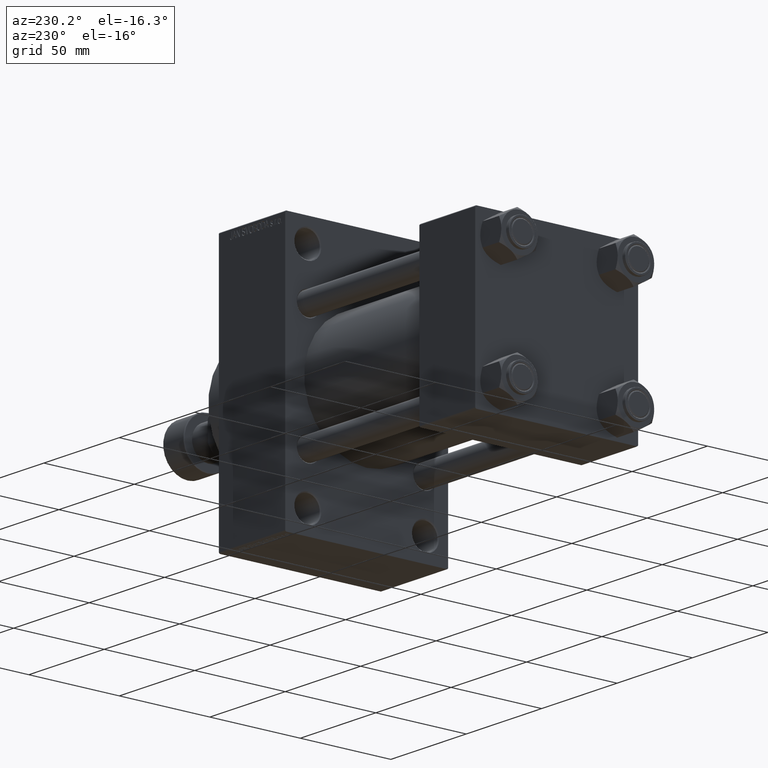
[diagram: clean part render]
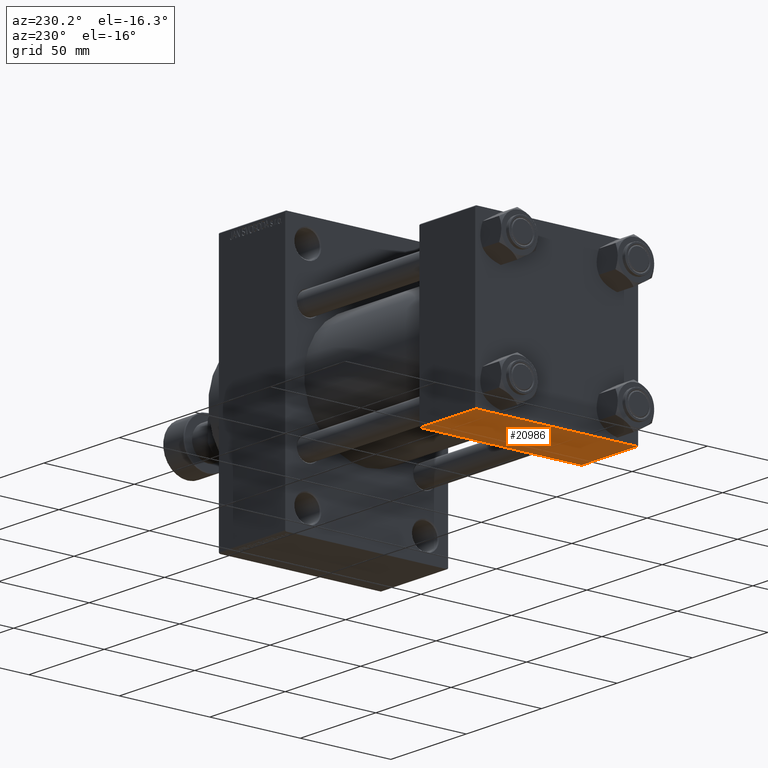
[diagram: same view with one face highlighted and labeled with its STEP entity id]
A machine part, auxiliary view. The second image highlights one B-rep face of the part: STEP entity #20986.
In plain terms, the highlighted planar face has unit normal (0, 0, -1).
Its self-contained STEP definition (entity closure, byte-faithful):
#488 = ORIENTED_EDGE ( 'NONE', *, *, #529, .T. ) ;
#529 = EDGE_CURVE ( 'NONE', #12509, #26972, #31933, .T. ) ;
#586 = VECTOR ( 'NONE', #9986, 1000.000000000000000 ) ;
#4577 = LINE ( 'NONE', #11340, #29229 ) ;
#4639 = DIRECTION ( 'NONE',  ( 0.000000000000000000, 7.709882115452478166E-17, -1.000000000000000000 ) ) ;
#9986 = DIRECTION ( 'NONE',  ( 0.000000000000000000, -1.000000000000000000, -7.709882115452476934E-17 ) ) ;
#10240 = CARTESIAN_POINT ( 'NONE',  ( 37.00000000000000000, 45.00000000000000000, -44.99999999999999289 ) ) ;
#10510 = EDGE_CURVE ( 'NONE', #28097, #32923, #13578, .T. ) ;
#11340 = CARTESIAN_POINT ( 'NONE',  ( 37.00000000000000000, 44.50000000000000000, -44.99999999999999289 ) ) ;
#12273 = EDGE_CURVE ( 'NONE', #26972, #32923, #29617, .T. ) ;
#12509 = VERTEX_POINT ( 'NONE', #43065 ) ;
#13578 = LINE ( 'NONE', #38423, #586 ) ;
#13840 = DIRECTION ( 'NONE',  ( 0.000000000000000000, -1.000000000000000000, -7.709882115452476934E-17 ) ) ;
#16427 = ORIENTED_EDGE ( 'NONE', *, *, #12273, .T. ) ;
#17696 = CARTESIAN_POINT ( 'NONE',  ( 0.000000000000000000, 44.50000000000000000, -44.99999999999999289 ) ) ;
#19325 = DIRECTION ( 'NONE',  ( 0.000000000000000000, 1.000000000000000000, 7.709882115452478166E-17 ) ) ;
#20986 = ADVANCED_FACE ( 'NONE', ( #41966 ), #23414, .T. ) ;
#21153 = EDGE_LOOP ( 'NONE', ( #38641, #27041, #488, #16427 ) ) ;
#23414 = PLANE ( 'NONE',  #42341 ) ;
#26003 = CARTESIAN_POINT ( 'NONE',  ( 0.000000000000000000, -44.49999999999997158, -45.00000000000000000 ) ) ;
#26972 = VERTEX_POINT ( 'NONE', #44587 ) ;
#27041 = ORIENTED_EDGE ( 'NONE', *, *, #45316, .T. ) ;
#28097 = VERTEX_POINT ( 'NONE', #17696 ) ;
#29229 = VECTOR ( 'NONE', #34218, 1000.000000000000000 ) ;
#29617 = LINE ( 'NONE', #26003, #29867 ) ;
#29867 = VECTOR ( 'NONE', #40716, 1000.000000000000000 ) ;
#30420 = CARTESIAN_POINT ( 'NONE',  ( 37.00000000000000000, 45.00000000000000000, -44.99999999999999289 ) ) ;
#30530 = VECTOR ( 'NONE', #13840, 1000.000000000000000 ) ;
#31933 = LINE ( 'NONE', #10240, #30530 ) ;
#32923 = VERTEX_POINT ( 'NONE', #33783 ) ;
#33783 = CARTESIAN_POINT ( 'NONE',  ( 0.000000000000000000, -44.49999999999994316, -45.00000000000000000 ) ) ;
#34218 = DIRECTION ( 'NONE',  ( 1.000000000000000000, 0.000000000000000000, 0.000000000000000000 ) ) ;
#38423 = CARTESIAN_POINT ( 'NONE',  ( 0.000000000000000000, 45.00000000000000000, -44.99999999999999289 ) ) ;
#38641 = ORIENTED_EDGE ( 'NONE', *, *, #10510, .F. ) ;
#40716 = DIRECTION ( 'NONE',  ( -1.000000000000000000, 0.000000000000000000, 0.000000000000000000 ) ) ;
#41966 = FACE_OUTER_BOUND ( 'NONE', #21153, .T. ) ;
#42341 = AXIS2_PLACEMENT_3D ( 'NONE', #30420, #4639, #19325 ) ;
#43065 = CARTESIAN_POINT ( 'NONE',  ( 37.00000000000000000, 44.50000000000000000, -44.99999999999999289 ) ) ;
#44587 = CARTESIAN_POINT ( 'NONE',  ( 37.00000000000000000, -44.49999999999994316, -45.00000000000000000 ) ) ;
#45316 = EDGE_CURVE ( 'NONE', #28097, #12509, #4577, .T. ) ;